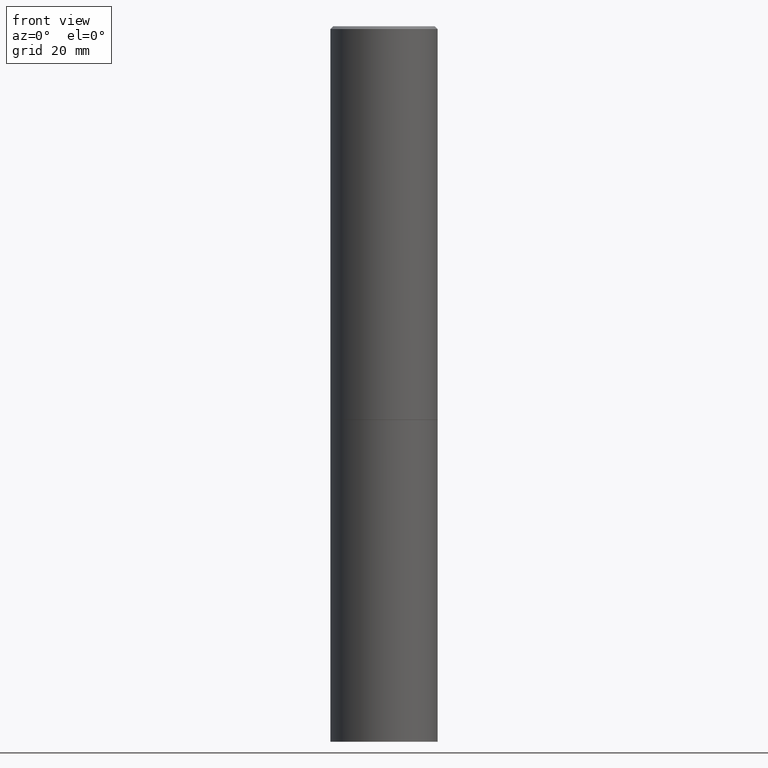
[diagram: clean part render]
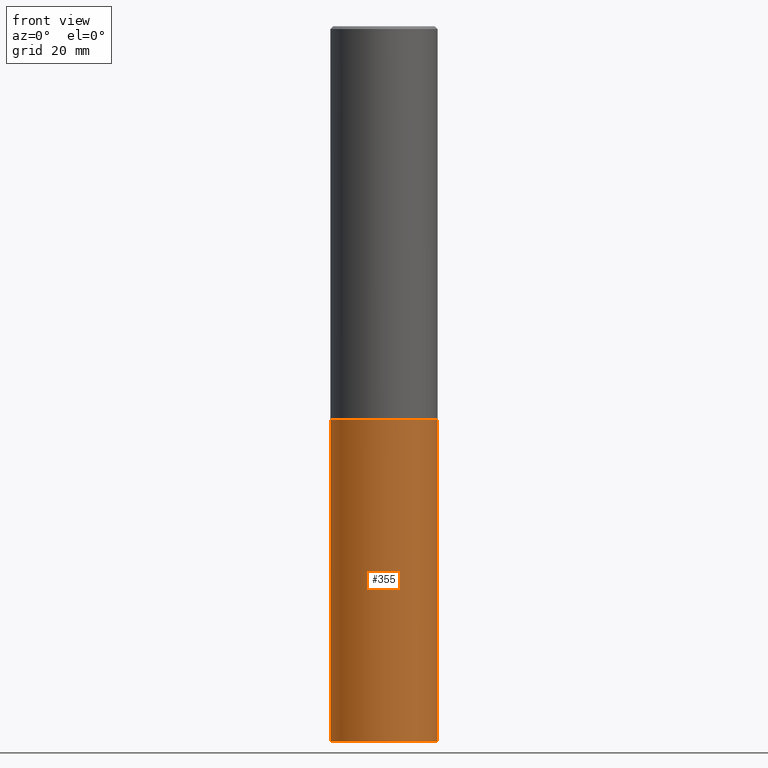
[diagram: same view with one face highlighted and labeled with its STEP entity id]
A machine part, front view. The second image highlights one B-rep face of the part: STEP entity #355.
In plain terms, the highlighted cylindrical surface (partial cylindrical patch) has radius 9.525 mm, axis along (-0, 0, 1).
Its self-contained STEP definition (entity closure, byte-faithful):
#19 = VECTOR ( 'NONE', #133, 39.37007874015748143 ) ;
#24 = FACE_OUTER_BOUND ( 'NONE', #92, .T. ) ;
#34 = CARTESIAN_POINT ( 'NONE',  ( 0.000000000000000000, 0.000000000000000000, 0.000000000000000000 ) ) ;
#59 = DIRECTION ( 'NONE',  ( -2.445468806185136597E-29, 3.491481338843145583E-15, 1.000000000000000000 ) ) ;
#78 = CARTESIAN_POINT ( 'NONE',  ( 0.3750000000000000555, -2.007601769834807990E-14, -5.000000000000000000 ) ) ;
#81 = ORIENTED_EDGE ( 'NONE', *, *, #361, .T. ) ;
#82 = DIRECTION ( 'NONE',  ( 1.000000000000000000, -6.982962677686266711E-15, 0.000000000000000000 ) ) ;
#85 = CARTESIAN_POINT ( 'NONE',  ( 6.725039217009124520E-29, -9.601573681818649859E-15, -2.750000000000000000 ) ) ;
#86 = CARTESIAN_POINT ( 'NONE',  ( -0.3750000000000000555, 2.664535259100376091E-15, -1.844600658845589598E-29 ) ) ;
#92 = EDGE_LOOP ( 'NONE', ( #170, #202, #81, #258 ) ) ;
#94 = AXIS2_PLACEMENT_3D ( 'NONE', #34, #59, #162 ) ;
#95 = CARTESIAN_POINT ( 'NONE',  ( -0.3750000000000000555, -1.086495492891681496E-14, -2.750000000000000000 ) ) ;
#100 = VECTOR ( 'NONE', #229, 39.37007874015748143 ) ;
#109 = LINE ( 'NONE', #86, #100 ) ;
#133 = DIRECTION ( 'NONE',  ( -2.445468806185136877E-29, 3.491481338843145188E-15, 1.000000000000000000 ) ) ;
#135 = LINE ( 'NONE', #251, #19 ) ;
#162 = DIRECTION ( 'NONE',  ( 1.000000000000000000, -6.982962677686265922E-15, 4.876176775795935793E-29 ) ) ;
#165 = AXIS2_PLACEMENT_3D ( 'NONE', #335, #344, #194 ) ;
#170 = ORIENTED_EDGE ( 'NONE', *, *, #225, .F. ) ;
#181 = CARTESIAN_POINT ( 'NONE',  ( 0.3750000000000000555, -1.222018468595100145E-14, -2.750000000000000000 ) ) ;
#184 = EDGE_CURVE ( 'NONE', #322, #320, #207, .T. ) ;
#187 = CARTESIAN_POINT ( 'NONE',  ( -0.3750000000000000555, -1.086495492891681496E-14, -5.000000000000000000 ) ) ;
#191 = EDGE_CURVE ( 'NONE', #278, #303, #286, .T. ) ;
#194 = DIRECTION ( 'NONE',  ( 1.000000000000000000, -6.982962677686266711E-15, 0.000000000000000000 ) ) ;
#202 = ORIENTED_EDGE ( 'NONE', *, *, #184, .T. ) ;
#207 = CIRCLE ( 'NONE', #165, 0.3750000000000000555 ) ;
#221 = DIRECTION ( 'NONE',  ( -2.445468806185136597E-29, 3.491481338843145583E-15, 1.000000000000000000 ) ) ;
#225 = EDGE_CURVE ( 'NONE', #322, #278, #109, .T. ) ;
#229 = DIRECTION ( 'NONE',  ( -2.445468806185136877E-29, 3.491481338843145188E-15, 1.000000000000000000 ) ) ;
#251 = CARTESIAN_POINT ( 'NONE',  ( 0.3750000000000000555, -2.618611004132350016E-15, 1.828566290923476203E-29 ) ) ;
#258 = ORIENTED_EDGE ( 'NONE', *, *, #191, .F. ) ;
#278 = VERTEX_POINT ( 'NONE', #95 ) ;
#286 = CIRCLE ( 'NONE', #363, 0.3750000000000000555 ) ;
#303 = VERTEX_POINT ( 'NONE', #181 ) ;
#306 = CYLINDRICAL_SURFACE ( 'NONE', #94, 0.3750000000000000555 ) ;
#320 = VERTEX_POINT ( 'NONE', #78 ) ;
#322 = VERTEX_POINT ( 'NONE', #187 ) ;
#335 = CARTESIAN_POINT ( 'NONE',  ( 1.222734403092568523E-28, -1.745740669421572989E-14, -5.000000000000000000 ) ) ;
#344 = DIRECTION ( 'NONE',  ( -2.445468806185136597E-29, 3.491481338843145583E-15, 1.000000000000000000 ) ) ;
#355 = ADVANCED_FACE ( 'NONE', ( #24 ), #306, .T. ) ;
#361 = EDGE_CURVE ( 'NONE', #320, #303, #135, .T. ) ;
#363 = AXIS2_PLACEMENT_3D ( 'NONE', #85, #221, #82 ) ;